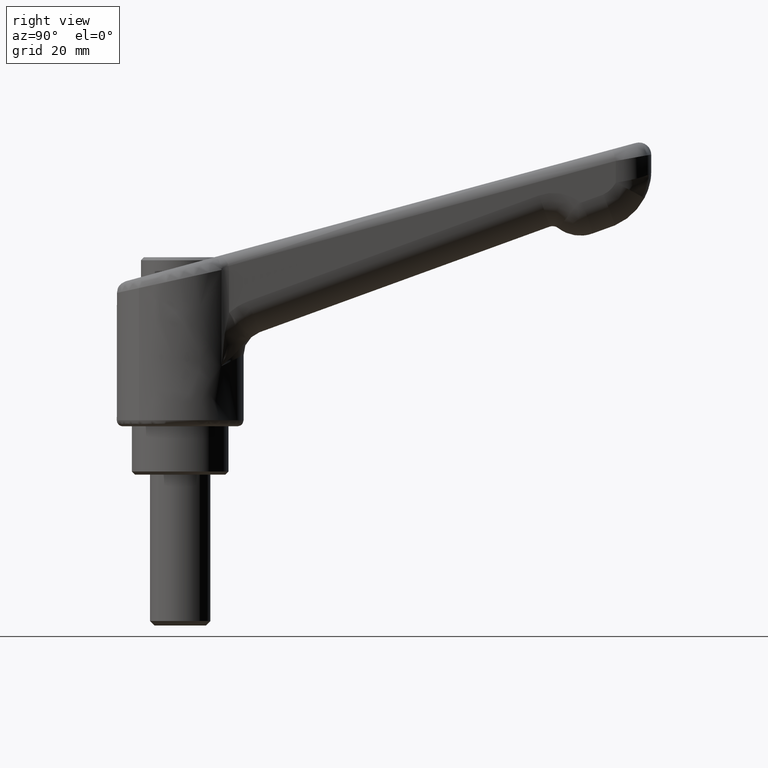
[diagram: clean part render]
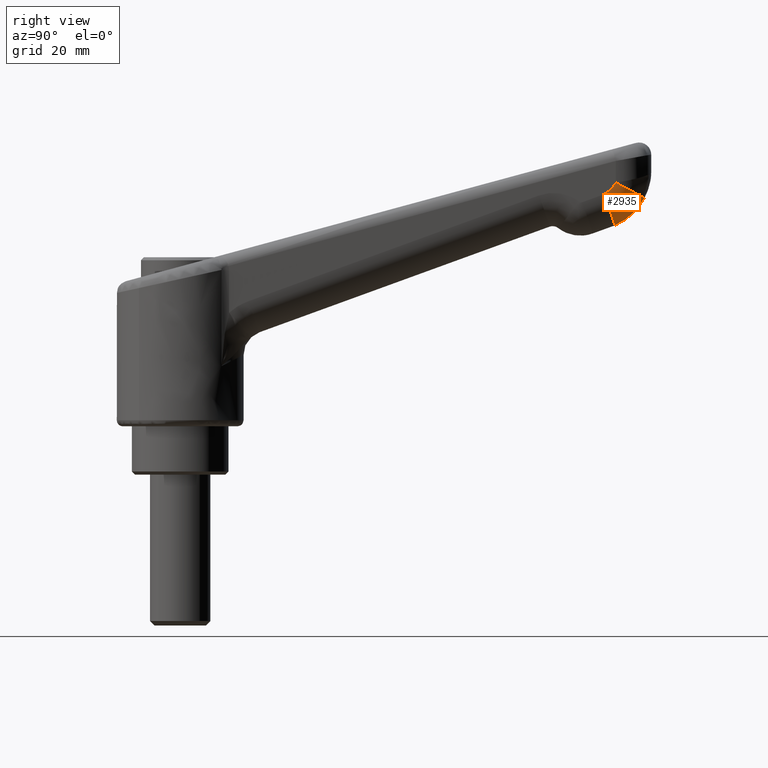
[diagram: same view with one face highlighted and labeled with its STEP entity id]
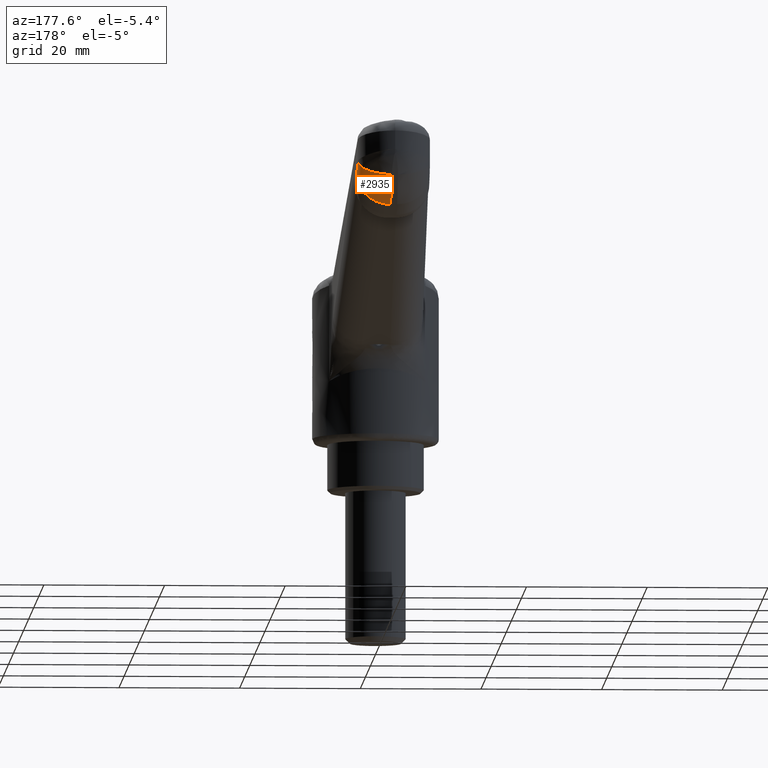
[diagram: same view with one face highlighted and labeled with its STEP entity id]
A machine part, right view. The second image highlights one B-rep face of the part: STEP entity #2935.
A second angle (auxiliary view) of the same face is appended — the face is thin or edge-on in the first view.
In plain terms, the highlighted face is a freeform B-spline surface patch.
Its self-contained STEP definition (entity closure, byte-faithful):
#2721=CARTESIAN_POINT('',(72.139020671948700,-5.998398053955600,40.354479944382241));
#2722=VERTEX_POINT('',#2721);
#2723=CARTESIAN_POINT('',(76.877166235546099,-0.499874600901440,37.790085320849101));
#2724=VERTEX_POINT('',#2723);
#2725=CARTESIAN_POINT('',(72.139020671948700,-5.998398053955600,40.354479944382241));
#2726=CARTESIAN_POINT('',(72.571050955964523,-5.988549850283153,40.126658969345627));
#2727=CARTESIAN_POINT('',(73.314556123852100,-5.857929835706647,39.733200560461320));
#2728=CARTESIAN_POINT('',(74.373527517398259,-5.373408344469380,39.169153401117512));
#2729=CARTESIAN_POINT('',(75.218376902420033,-4.714932149576064,38.715833945483247));
#2730=CARTESIAN_POINT('',(75.994665228399654,-3.769015027818228,38.295138353718670));
#2731=CARTESIAN_POINT('',(76.541458120904878,-2.680934902418244,37.993661334759217));
#2732=CARTESIAN_POINT('',(76.828907138319849,-1.521230678203234,37.827996084297098));
#2733=CARTESIAN_POINT('',(76.878744720824443,-0.810720235705134,37.793050375114611));
#2734=CARTESIAN_POINT('',(76.877166235546099,-0.499874600901440,37.790085320849101));
#2735=B_SPLINE_CURVE_WITH_KNOTS('',3,(#2725,#2726,#2727,#2728,#2729,#2730,#2731,#2732,#2733,#2734),.UNSPECIFIED.,.F.,.U.,(4,1,1,1,1,1,1,4),(0.000000097835523,1.465512835858277,2.531368123844399,3.863682761854494,4.929478884414282,6.395015989640250,7.594085837781614,8.526687954610978),.UNSPECIFIED.);
#2736=EDGE_CURVE('',#2722,#2724,#2735,.T.);
#2818=CARTESIAN_POINT('',(72.112108361013199,-5.999021782661941,40.385761599685203));
#2819=CARTESIAN_POINT('',(72.109758716876200,-5.999076238799201,40.381303986888732));
#2820=CARTESIAN_POINT('',(72.107409072939078,-5.999130694931822,40.376846374471576));
#2821=CARTESIAN_POINT('',(71.868690105228708,-6.004663325455134,39.923962165984214));
#2822=CARTESIAN_POINT('',(71.555279170202994,-6.011927041958798,39.516396891199641));
#2823=CARTESIAN_POINT('',(70.810031608670045,-6.029199148343772,38.829248517993989));
#2824=CARTESIAN_POINT('',(70.378430221188637,-6.039202086246895,38.549885713334966));
#2825=CARTESIAN_POINT('',(69.912363990557722,-6.050003792865509,38.350618562134521));
#2826=CARTESIAN_POINT('',(72.129094691011360,-5.998628101804789,40.376877542881751));
#2827=CARTESIAN_POINT('',(72.126735065999739,-5.998682789262124,40.372400739365553));
#2828=CARTESIAN_POINT('',(72.124375441088716,-5.998737476717134,40.367923936040171));
#2829=CARTESIAN_POINT('',(71.884641904456728,-6.004293621228647,39.913088979441063));
#2830=CARTESIAN_POINT('',(71.569897124919024,-6.011588251358174,39.503761117509995));
#2831=CARTESIAN_POINT('',(70.821465176383526,-6.028934160159844,38.813625313437555));
#2832=CARTESIAN_POINT('',(70.388015979224477,-6.038979923517204,38.533038470570254));
#2833=CARTESIAN_POINT('',(69.919942753697356,-6.049828144919816,38.332887603758003));
#2834=CARTESIAN_POINT('',(76.919750725713598,-5.887598257553866,37.871306278042724));
#2835=CARTESIAN_POINT('',(76.914604985975160,-5.887717516936710,37.861402014261024));
#2836=CARTESIAN_POINT('',(76.909459184785518,-5.887836777743766,37.851497632201109));
#2837=CARTESIAN_POINT('',(76.386333660200890,-5.899960909624222,36.844611654713319));
#2838=CARTESIAN_POINT('',(75.698492717433226,-5.915902541031819,35.934999236899309));
#2839=CARTESIAN_POINT('',(74.056885869933708,-5.953948969595295,34.392639616915652));
#2840=CARTESIAN_POINT('',(73.103574868427913,-5.976043223756304,33.760366379578450));
#2841=CARTESIAN_POINT('',(72.069531920331926,-6.000008548470917,33.303798379318096));
#2842=CARTESIAN_POINT('',(76.892868250196642,-0.480492048674320,37.819876195761907));
#2843=CARTESIAN_POINT('',(76.887601969133399,-0.480546853771208,37.809884664574469));
#2844=CARTESIAN_POINT('',(76.882335688294603,-0.480601658865762,37.799893133812702));
#2845=CARTESIAN_POINT('',(76.347291272633015,-0.486169755343727,36.784772045211582));
#2846=CARTESIAN_POINT('',(75.644834323989244,-0.493480117832330,35.871212610357112));
#2847=CARTESIAN_POINT('',(73.974454284368335,-0.510863469294103,34.330927018461033));
#2848=CARTESIAN_POINT('',(73.007066349507113,-0.520930939416175,33.704694054751052));
#2849=CARTESIAN_POINT('',(71.962393832613316,-0.531802659908875,33.257979630065265));
#2850=CARTESIAN_POINT('',(76.892772977401449,-0.461329002403213,37.819693925059518));
#2851=CARTESIAN_POINT('',(76.887506269709476,-0.461383694310067,37.809702085690169));
#2852=CARTESIAN_POINT('',(76.882239562465529,-0.461438386212267,37.799710247170793));
#2853=CARTESIAN_POINT('',(76.347152990722606,-0.466994970448924,36.784560102857753));
#2854=CARTESIAN_POINT('',(75.644644427464812,-0.474290218431149,35.870986870115772));
#2855=CARTESIAN_POINT('',(73.974163118979490,-0.491637366880240,34.330709036814767));
#2856=CARTESIAN_POINT('',(73.006725840993269,-0.501683807684835,33.704497627525754));
#2857=CARTESIAN_POINT('',(71.962016276202263,-0.512532610999798,33.257818164027420));
#2865=(BOUNDED_SURFACE()B_SPLINE_SURFACE(3,2,((#2818,#2826,#2834,#2842,#2850),(#2819,#2827,#2835,#2843,#2851),(#2820,#2828,#2836,#2844,#2852),(#2821,#2829,#2837,#2845,#2853),(#2822,#2830,#2838,#2846,#2854),(#2823,#2831,#2839,#2847,#2855),(#2824,#2832,#2840,#2848,#2856),(#2825,#2833,#2841,#2849,#2857)),.UNSPECIFIED.,.F.,.F.,.U.)B_SPLINE_SURFACE_WITH_KNOTS((4,2,2,4),(3,1,1,3),(0.0,0.033885138240547,3.442675041535389,6.851464944830227),(0.0,0.045295532550980,9.099341769601091,9.144615766286234),.UNSPECIFIED.)GEOMETRIC_REPRESENTATION_ITEM()RATIONAL_B_SPLINE_SURFACE(((1.002858298948263,1.001429149474131,0.714329765217426,1.001428469981704,1.002856939963409),(1.002858341624755,1.001429170812378,0.714325499952012,1.001428491309806,1.002856982619611),(1.002858384301248,1.001429192150624,0.714321234686597,1.001428512637906,1.002857025275813),(1.002862720163617,1.001431360081809,0.713887890644059,1.001430679538343,1.002861359076686),(1.002868427994310,1.001434213997155,0.713317426405089,1.001433532096789,1.002867064193578),(1.002882012077766,1.001441006038883,0.711959776844876,1.001440320909225,1.002880641818450),(1.002889886928821,1.001444943464410,0.711172731616094,1.001444256462694,1.002888512925388),(1.002898412829060,1.001449206414530,0.710320617835371,1.001448517385985,1.002897034771969)))REPRESENTATION_ITEM('')SURFACE());
#2866=CARTESIAN_POINT('',(70.063429511224399,-6.046502647905560,38.375896371800998));
#2867=VERTEX_POINT('',#2866);
#2868=CARTESIAN_POINT('',(72.000023528322998,-0.550739038748804,33.274163563556897));
#2869=VERTEX_POINT('',#2868);
#2870=CARTESIAN_POINT('',(70.063429511224399,-6.046502647905560,38.375896371800998));
#2871=CARTESIAN_POINT('',(70.071946785837028,-6.046305244204831,38.355340508319657));
#2872=CARTESIAN_POINT('',(70.080433969055164,-6.045975604975124,38.334854586991582));
#2873=CARTESIAN_POINT('',(70.097685560237252,-6.045027005164694,38.293164486175577));
#2874=CARTESIAN_POINT('',(70.123525511177448,-6.043189594151761,38.230667844137407));
#2875=CARTESIAN_POINT('',(70.149254240245924,-6.040113045959034,38.168286602551788));
#2876=CARTESIAN_POINT('',(70.200565963875846,-6.032316613385912,38.043677884916633));
#2877=CARTESIAN_POINT('',(70.234579572781172,-6.024928858326748,37.960810343037082));
#2878=CARTESIAN_POINT('',(70.336054239872141,-5.996229846461194,37.712824755210711));
#2879=CARTESIAN_POINT('',(70.402950644635581,-5.968398608358393,37.548322316093007));
#2880=CARTESIAN_POINT('',(70.502202065347021,-5.913459671049123,37.302834376972292));
#2881=CARTESIAN_POINT('',(70.535104309634107,-5.892929720532415,37.221212465427747));
#2882=CARTESIAN_POINT('',(70.599971039929102,-5.847845600342270,37.059835415491428));
#2883=CARTESIAN_POINT('',(70.632010053798865,-5.823253646501175,36.979896281029809));
#2884=CARTESIAN_POINT('',(70.726973624766288,-5.743427356154208,36.742294917368021));
#2885=CARTESIAN_POINT('',(70.850521474086023,-5.620885898532146,36.431392384793092));
#2886=CARTESIAN_POINT('',(70.968097999833972,-5.466484705255406,36.132199428770257));
#2887=CARTESIAN_POINT('',(71.054036786304863,-5.338527912951452,35.912286175835703));
#2888=CARTESIAN_POINT('',(71.082308437868818,-5.293846083585772,35.839729983728382));
#2889=CARTESIAN_POINT('',(71.138093222685399,-5.200343157029160,35.696145769297992));
#2890=CARTESIAN_POINT('',(71.165563727977187,-5.151576198238972,35.625226156650257));
#2891=CARTESIAN_POINT('',(71.299538837917950,-4.900077983935422,35.278313369200667));
#2892=CARTESIAN_POINT('',(71.397191912109861,-4.672637834166778,35.022119692254343));
#2893=CARTESIAN_POINT('',(71.529873583557162,-4.292893776920915,34.669280705176703));
#2894=CARTESIAN_POINT('',(71.571784225758137,-4.159836696211472,34.556946081544048));
#2895=CARTESIAN_POINT('',(71.631081281995847,-3.950211810226686,34.396635691628603));
#2896=CARTESIAN_POINT('',(71.650181532499005,-3.878888057804523,34.344753421322238));
#2897=CARTESIAN_POINT('',(71.686802555067928,-3.734392144138394,34.244790473427287));
#2898=CARTESIAN_POINT('',(71.704366047852986,-3.661070665650961,34.196594401033138));
#2899=CARTESIAN_POINT('',(71.788512162608058,-3.289176326647927,33.964409599192443));
#2900=CARTESIAN_POINT('',(71.844186401287558,-2.974891842412623,33.806560035206083));
#2901=CARTESIAN_POINT('',(71.899164644149110,-2.560845644494675,33.644537234456962));
#2902=CARTESIAN_POINT('',(71.909422932034488,-2.476967483410982,33.613912717265087));
#2903=CARTESIAN_POINT('',(71.928435714026620,-2.307028430277724,33.556299191044161));
#2904=CARTESIAN_POINT('',(71.937134090348280,-2.221448580939394,33.529479038425990));
#2905=CARTESIAN_POINT('',(71.960748016607766,-1.963912799923695,33.455189429724911));
#2906=CARTESIAN_POINT('',(71.973236535772998,-1.790735571573702,33.413730489337262));
#2907=CARTESIAN_POINT('',(72.001166363361932,-1.266840342186091,33.313035923218749));
#2908=CARTESIAN_POINT('',(72.007166397802052,-0.911801240651504,33.277252638479339));
#2909=CARTESIAN_POINT('',(72.000023528322998,-0.550739038748804,33.274163563556897));
#2910=B_SPLINE_CURVE_WITH_KNOTS('',3,(#2870,#2871,#2872,#2873,#2874,#2875,#2876,#2877,#2878,#2879,#2880,#2881,#2882,#2883,#2884,#2885,#2886,#2887,#2888,#2889,#2890,#2891,#2892,#2893,#2894,#2895,#2896,#2897,#2898,#2899,#2900,#2901,#2902,#2903,#2904,#2905,#2906,#2907,#2908,#2909),.UNSPECIFIED.,.F.,.U.,(4,2,1,2,2,2,2,2,1,2,2,2,2,2,2,2,2,2,2,2,4),(0.0,0.007812500000001,0.015625000000002,0.031250000000000,0.062500000000000,0.125000000000000,0.156250000000000,0.187500000000000,0.249999999999998,0.312499999999997,0.343749999999997,0.374999999999997,0.499999999999999,0.562500000000000,0.593750000000000,0.624999999999999,0.750000000000000,0.781250000000000,0.812500000000000,0.874999999999999,1.0),.UNSPECIFIED.);
#2911=EDGE_CURVE('',#2867,#2869,#2910,.T.);
#2912=ORIENTED_EDGE('',*,*,#2911,.T.);
#2913=CARTESIAN_POINT('',(76.877166235546099,-0.499874600901440,37.790085320849101));
#2914=CARTESIAN_POINT('',(76.630379031846303,-0.502448356595683,37.321770414967538));
#2915=CARTESIAN_POINT('',(76.118988003269877,-0.507781694903196,36.514227081451892));
#2916=CARTESIAN_POINT('',(75.130886084136719,-0.518086730577215,35.358495760304542));
#2917=CARTESIAN_POINT('',(73.820744346893761,-0.531750398849467,34.220428172331253));
#2918=CARTESIAN_POINT('',(72.680280984767734,-0.543644499744696,33.568201516982462));
#2919=CARTESIAN_POINT('',(72.000023528322998,-0.550739038748804,33.274163563556897));
#2920=B_SPLINE_CURVE_WITH_KNOTS('',3,(#2913,#2914,#2915,#2916,#2917,#2918,#2919),.UNSPECIFIED.,.F.,.U.,(4,1,1,1,4),(0.000000013955979,1.588103108843437,2.858589809507357,4.552562462601056,6.775908769882373),.UNSPECIFIED.);
#2921=EDGE_CURVE('',#2724,#2869,#2920,.T.);
#2922=ORIENTED_EDGE('',*,*,#2921,.F.);
#2923=ORIENTED_EDGE('',*,*,#2736,.F.);
#2924=CARTESIAN_POINT('',(70.063429511224399,-6.046502647905560,38.375896371800998));
#2925=CARTESIAN_POINT('',(70.325065738857205,-6.040438879312246,38.498132826311547));
#2926=CARTESIAN_POINT('',(70.850974237324920,-6.028250248307973,38.808756634678353));
#2927=CARTESIAN_POINT('',(71.575996195980878,-6.011446897250254,39.465613945678150));
#2928=CARTESIAN_POINT('',(71.968976888679393,-6.002339045468047,40.031685701818972));
#2929=CARTESIAN_POINT('',(72.139020671948700,-5.998398053955600,40.354479944382241));
#2930=B_SPLINE_CURVE_WITH_KNOTS('',3,(#2924,#2925,#2926,#2927,#2928,#2929),.UNSPECIFIED.,.F.,.U.,(4,1,1,4),(0.000000017541509,0.866536449548349,1.824278567260292,2.918855494461456),.UNSPECIFIED.);
#2931=EDGE_CURVE('',#2867,#2722,#2930,.T.);
#2932=ORIENTED_EDGE('',*,*,#2931,.F.);
#2933=EDGE_LOOP('',(#2912,#2922,#2923,#2932));
#2934=FACE_OUTER_BOUND('',#2933,.T.);
#2935=ADVANCED_FACE('',(#2934),#2865,.T.);